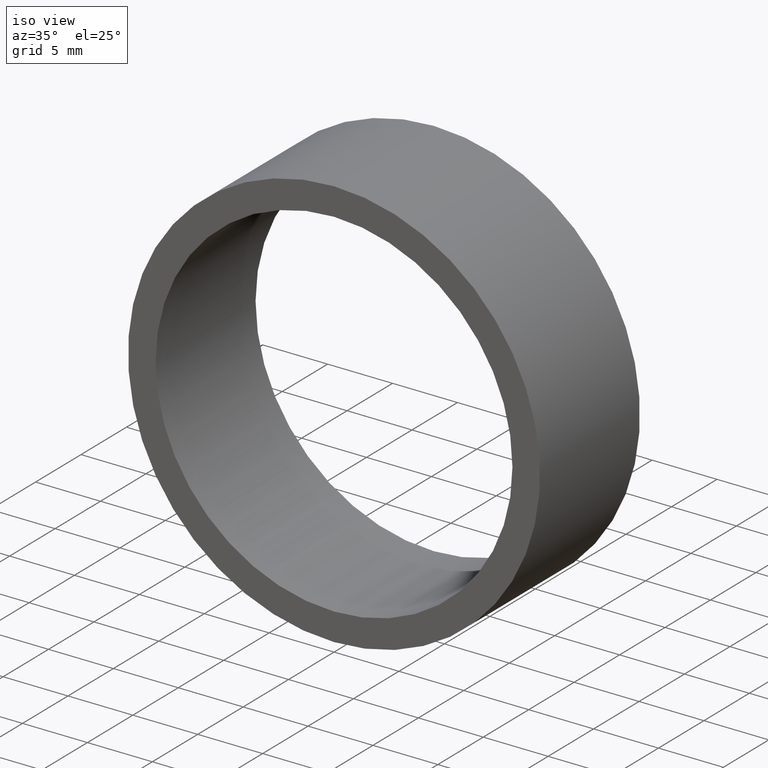
[diagram: clean part render]
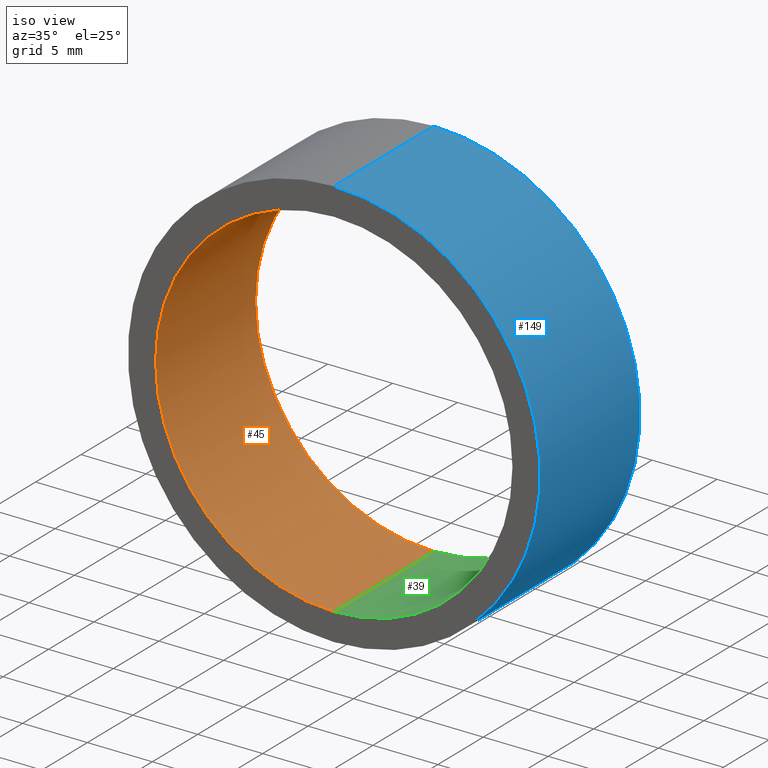
[diagram: same view with three faces highlighted in distinct colors, each labeled with its STEP entity id]
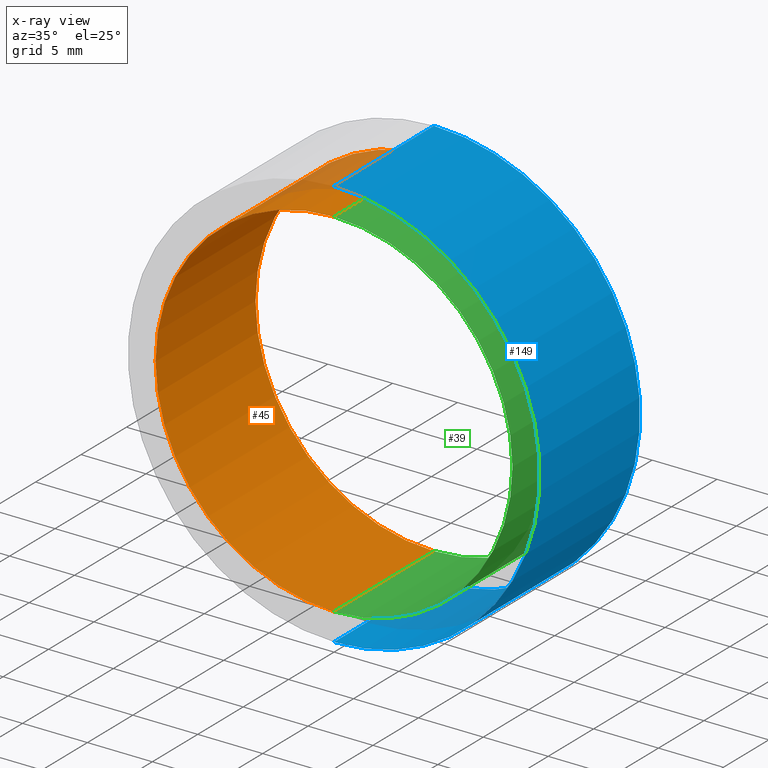
[diagram: x-ray of the same camera — body ghosted, the three highlighted faces saturated]
A machine part, iso view with three faces highlighted in distinct colors.
The next image is the same camera in x-ray (body ghosted, the three faces saturated) — at least one of them is partly hidden behind the body in this view.
Their STEP definitions:

[orange] entity #45 — the highlighted cylindrical surface (partial cylindrical patch) has radius 13.75 mm, axis along (-0, -1, -0).
#6 = AXIS2_PLACEMENT_3D ( 'NONE', #167, #24, #126 ) ;
#8 = CARTESIAN_POINT ( 'NONE',  ( 1.683889348827610700E-015, 0.0000000000000000000, 13.75000000000000000 ) ) ;
#9 = CARTESIAN_POINT ( 'NONE',  ( 0.0000000000000000000, 11.00000000000000000, -13.75000000000000000 ) ) ;
#13 = VERTEX_POINT ( 'NONE', #8 ) ;
#17 = CIRCLE ( 'NONE', #218, 13.75000000000000000 ) ;
#21 = VECTOR ( 'NONE', #230, 1000.000000000000000 ) ;
#23 = EDGE_CURVE ( 'NONE', #221, #13, #109, .T. ) ;
#24 = DIRECTION ( 'NONE',  ( -0.0000000000000000000, -1.000000000000000000, -0.0000000000000000000 ) ) ;
#27 = DIRECTION ( 'NONE',  ( 0.0000000000000000000, 1.000000000000000000, 0.0000000000000000000 ) ) ;
#28 = LINE ( 'NONE', #183, #21 ) ;
#30 = ORIENTED_EDGE ( 'NONE', *, *, #23, .T. ) ;
#34 = CARTESIAN_POINT ( 'NONE',  ( 1.683889348827610700E-015, 11.00000000000000000, 13.75000000000000000 ) ) ;
#36 = EDGE_CURVE ( 'NONE', #189, #221, #17, .T. ) ;
#45 = ADVANCED_FACE ( 'NONE', ( #77 ), #46, .F. ) ;
#46 = CYLINDRICAL_SURFACE ( 'NONE', #6, 13.75000000000000000 ) ;
#47 = EDGE_CURVE ( 'NONE', #189, #203, #28, .T. ) ;
#57 = DIRECTION ( 'NONE',  ( 0.0000000000000000000, 0.0000000000000000000, 1.000000000000000000 ) ) ;
#72 = ORIENTED_EDGE ( 'NONE', *, *, #36, .T. ) ;
#77 = FACE_OUTER_BOUND ( 'NONE', #161, .T. ) ;
#101 = EDGE_CURVE ( 'NONE', #203, #13, #169, .T. ) ;
#106 = VECTOR ( 'NONE', #179, 1000.000000000000000 ) ;
#109 = LINE ( 'NONE', #34, #106 ) ;
#126 = DIRECTION ( 'NONE',  ( 0.0000000000000000000, 0.0000000000000000000, -1.000000000000000000 ) ) ;
#141 = DIRECTION ( 'NONE',  ( 0.0000000000000000000, 1.000000000000000000, 0.0000000000000000000 ) ) ;
#142 = CARTESIAN_POINT ( 'NONE',  ( 1.683889348827610700E-015, 11.00000000000000000, 13.75000000000000000 ) ) ;
#161 = EDGE_LOOP ( 'NONE', ( #72, #30, #182, #244 ) ) ;
#167 = CARTESIAN_POINT ( 'NONE',  ( 0.0000000000000000000, 11.00000000000000000, 0.0000000000000000000 ) ) ;
#169 = CIRCLE ( 'NONE', #210, 13.75000000000000000 ) ;
#174 = CARTESIAN_POINT ( 'NONE',  ( 0.0000000000000000000, 0.0000000000000000000, 0.0000000000000000000 ) ) ;
#179 = DIRECTION ( 'NONE',  ( -0.0000000000000000000, -1.000000000000000000, -0.0000000000000000000 ) ) ;
#182 = ORIENTED_EDGE ( 'NONE', *, *, #101, .F. ) ;
#183 = CARTESIAN_POINT ( 'NONE',  ( 0.0000000000000000000, 11.00000000000000000, -13.75000000000000000 ) ) ;
#189 = VERTEX_POINT ( 'NONE', #9 ) ;
#203 = VERTEX_POINT ( 'NONE', #208 ) ;
#208 = CARTESIAN_POINT ( 'NONE',  ( 0.0000000000000000000, 0.0000000000000000000, -13.75000000000000000 ) ) ;
#210 = AXIS2_PLACEMENT_3D ( 'NONE', #174, #141, #57 ) ;
#218 = AXIS2_PLACEMENT_3D ( 'NONE', #219, #27, #227 ) ;
#219 = CARTESIAN_POINT ( 'NONE',  ( 0.0000000000000000000, 11.00000000000000000, 0.0000000000000000000 ) ) ;
#221 = VERTEX_POINT ( 'NONE', #142 ) ;
#227 = DIRECTION ( 'NONE',  ( 0.0000000000000000000, 0.0000000000000000000, 1.000000000000000000 ) ) ;
#230 = DIRECTION ( 'NONE',  ( -0.0000000000000000000, -1.000000000000000000, -0.0000000000000000000 ) ) ;
#244 = ORIENTED_EDGE ( 'NONE', *, *, #47, .F. ) ;

[blue] entity #149 — the highlighted cylindrical surface (partial cylindrical patch) has radius 15.875 mm, axis along (-0, -1, -0).
#1 = CARTESIAN_POINT ( 'NONE',  ( 1.944126793646423200E-015, 0.0000000000000000000, 15.87500000000000000 ) ) ;
#5 = VERTEX_POINT ( 'NONE', #11 ) ;
#11 = CARTESIAN_POINT ( 'NONE',  ( 0.0000000000000000000, 0.0000000000000000000, -15.87500000000000000 ) ) ;
#14 = LINE ( 'NONE', #232, #212 ) ;
#19 = DIRECTION ( 'NONE',  ( -0.0000000000000000000, -1.000000000000000000, -0.0000000000000000000 ) ) ;
#20 = CARTESIAN_POINT ( 'NONE',  ( 0.0000000000000000000, 11.00000000000000000, -15.87500000000000000 ) ) ;
#49 = DIRECTION ( 'NONE',  ( 0.0000000000000000000, 0.0000000000000000000, -1.000000000000000000 ) ) ;
#50 = VERTEX_POINT ( 'NONE', #20 ) ;
#64 = CIRCLE ( 'NONE', #207, 15.87500000000000000 ) ;
#69 = FACE_OUTER_BOUND ( 'NONE', #241, .T. ) ;
#74 = DIRECTION ( 'NONE',  ( 0.0000000000000000000, 0.0000000000000000000, 1.000000000000000000 ) ) ;
#78 = DIRECTION ( 'NONE',  ( -0.0000000000000000000, -1.000000000000000000, -0.0000000000000000000 ) ) ;
#84 = CARTESIAN_POINT ( 'NONE',  ( 1.944126793646423200E-015, 11.00000000000000000, 15.87500000000000000 ) ) ;
#108 = CARTESIAN_POINT ( 'NONE',  ( 0.0000000000000000000, 11.00000000000000000, 0.0000000000000000000 ) ) ;
#116 = ORIENTED_EDGE ( 'NONE', *, *, #242, .F. ) ;
#119 = DIRECTION ( 'NONE',  ( 0.0000000000000000000, 0.0000000000000000000, 1.000000000000000000 ) ) ;
#124 = CIRCLE ( 'NONE', #192, 15.87500000000000000 ) ;
#130 = EDGE_CURVE ( 'NONE', #50, #5, #14, .T. ) ;
#133 = VERTEX_POINT ( 'NONE', #140 ) ;
#139 = ORIENTED_EDGE ( 'NONE', *, *, #164, .T. ) ;
#140 = CARTESIAN_POINT ( 'NONE',  ( 1.944126793646423200E-015, 11.00000000000000000, 15.87500000000000000 ) ) ;
#143 = ORIENTED_EDGE ( 'NONE', *, *, #130, .F. ) ;
#145 = EDGE_CURVE ( 'NONE', #133, #186, #204, .T. ) ;
#146 = AXIS2_PLACEMENT_3D ( 'NONE', #165, #215, #49 ) ;
#149 = ADVANCED_FACE ( 'NONE', ( #69 ), #224, .T. ) ;
#164 = EDGE_CURVE ( 'NONE', #186, #5, #124, .T. ) ;
#165 = CARTESIAN_POINT ( 'NONE',  ( 0.0000000000000000000, 11.00000000000000000, 0.0000000000000000000 ) ) ;
#175 = DIRECTION ( 'NONE',  ( 0.0000000000000000000, 1.000000000000000000, 0.0000000000000000000 ) ) ;
#185 = CARTESIAN_POINT ( 'NONE',  ( 0.0000000000000000000, 0.0000000000000000000, 0.0000000000000000000 ) ) ;
#186 = VERTEX_POINT ( 'NONE', #1 ) ;
#192 = AXIS2_PLACEMENT_3D ( 'NONE', #185, #201, #74 ) ;
#201 = DIRECTION ( 'NONE',  ( 0.0000000000000000000, 1.000000000000000000, 0.0000000000000000000 ) ) ;
#204 = LINE ( 'NONE', #84, #217 ) ;
#206 = ORIENTED_EDGE ( 'NONE', *, *, #145, .T. ) ;
#207 = AXIS2_PLACEMENT_3D ( 'NONE', #108, #175, #119 ) ;
#212 = VECTOR ( 'NONE', #19, 1000.000000000000000 ) ;
#215 = DIRECTION ( 'NONE',  ( -0.0000000000000000000, -1.000000000000000000, -0.0000000000000000000 ) ) ;
#217 = VECTOR ( 'NONE', #78, 1000.000000000000000 ) ;
#224 = CYLINDRICAL_SURFACE ( 'NONE', #146, 15.87500000000000000 ) ;
#232 = CARTESIAN_POINT ( 'NONE',  ( 0.0000000000000000000, 11.00000000000000000, -15.87500000000000000 ) ) ;
#241 = EDGE_LOOP ( 'NONE', ( #116, #206, #139, #143 ) ) ;
#242 = EDGE_CURVE ( 'NONE', #133, #50, #64, .T. ) ;

[green] entity #39 — the highlighted cylindrical surface (partial cylindrical patch) has radius 13.75 mm, axis along (-0, -1, -0).
#3 = AXIS2_PLACEMENT_3D ( 'NONE', #68, #25, #188 ) ;
#8 = CARTESIAN_POINT ( 'NONE',  ( 1.683889348827610700E-015, 0.0000000000000000000, 13.75000000000000000 ) ) ;
#9 = CARTESIAN_POINT ( 'NONE',  ( 0.0000000000000000000, 11.00000000000000000, -13.75000000000000000 ) ) ;
#13 = VERTEX_POINT ( 'NONE', #8 ) ;
#21 = VECTOR ( 'NONE', #230, 1000.000000000000000 ) ;
#23 = EDGE_CURVE ( 'NONE', #221, #13, #109, .T. ) ;
#25 = DIRECTION ( 'NONE',  ( 0.0000000000000000000, 1.000000000000000000, 0.0000000000000000000 ) ) ;
#26 = CIRCLE ( 'NONE', #118, 13.75000000000000000 ) ;
#28 = LINE ( 'NONE', #183, #21 ) ;
#31 = AXIS2_PLACEMENT_3D ( 'NONE', #112, #243, #193 ) ;
#34 = CARTESIAN_POINT ( 'NONE',  ( 1.683889348827610700E-015, 11.00000000000000000, 13.75000000000000000 ) ) ;
#39 = ADVANCED_FACE ( 'NONE', ( #105 ), #151, .F. ) ;
#47 = EDGE_CURVE ( 'NONE', #189, #203, #28, .T. ) ;
#68 = CARTESIAN_POINT ( 'NONE',  ( 0.0000000000000000000, 0.0000000000000000000, 0.0000000000000000000 ) ) ;
#70 = EDGE_CURVE ( 'NONE', #221, #189, #26, .T. ) ;
#83 = ORIENTED_EDGE ( 'NONE', *, *, #70, .T. ) ;
#99 = DIRECTION ( 'NONE',  ( 0.0000000000000000000, 1.000000000000000000, 0.0000000000000000000 ) ) ;
#105 = FACE_OUTER_BOUND ( 'NONE', #205, .T. ) ;
#106 = VECTOR ( 'NONE', #179, 1000.000000000000000 ) ;
#109 = LINE ( 'NONE', #34, #106 ) ;
#112 = CARTESIAN_POINT ( 'NONE',  ( 0.0000000000000000000, 11.00000000000000000, 0.0000000000000000000 ) ) ;
#118 = AXIS2_PLACEMENT_3D ( 'NONE', #199, #99, #233 ) ;
#123 = ORIENTED_EDGE ( 'NONE', *, *, #47, .T. ) ;
#142 = CARTESIAN_POINT ( 'NONE',  ( 1.683889348827610700E-015, 11.00000000000000000, 13.75000000000000000 ) ) ;
#151 = CYLINDRICAL_SURFACE ( 'NONE', #31, 13.75000000000000000 ) ;
#170 = EDGE_CURVE ( 'NONE', #13, #203, #181, .T. ) ;
#179 = DIRECTION ( 'NONE',  ( -0.0000000000000000000, -1.000000000000000000, -0.0000000000000000000 ) ) ;
#181 = CIRCLE ( 'NONE', #3, 13.75000000000000000 ) ;
#183 = CARTESIAN_POINT ( 'NONE',  ( 0.0000000000000000000, 11.00000000000000000, -13.75000000000000000 ) ) ;
#188 = DIRECTION ( 'NONE',  ( 0.0000000000000000000, 0.0000000000000000000, 1.000000000000000000 ) ) ;
#189 = VERTEX_POINT ( 'NONE', #9 ) ;
#193 = DIRECTION ( 'NONE',  ( 0.0000000000000000000, 0.0000000000000000000, -1.000000000000000000 ) ) ;
#199 = CARTESIAN_POINT ( 'NONE',  ( 0.0000000000000000000, 11.00000000000000000, 0.0000000000000000000 ) ) ;
#200 = ORIENTED_EDGE ( 'NONE', *, *, #170, .F. ) ;
#203 = VERTEX_POINT ( 'NONE', #208 ) ;
#205 = EDGE_LOOP ( 'NONE', ( #211, #83, #123, #200 ) ) ;
#208 = CARTESIAN_POINT ( 'NONE',  ( 0.0000000000000000000, 0.0000000000000000000, -13.75000000000000000 ) ) ;
#211 = ORIENTED_EDGE ( 'NONE', *, *, #23, .F. ) ;
#221 = VERTEX_POINT ( 'NONE', #142 ) ;
#230 = DIRECTION ( 'NONE',  ( -0.0000000000000000000, -1.000000000000000000, -0.0000000000000000000 ) ) ;
#233 = DIRECTION ( 'NONE',  ( 0.0000000000000000000, 0.0000000000000000000, 1.000000000000000000 ) ) ;
#243 = DIRECTION ( 'NONE',  ( -0.0000000000000000000, -1.000000000000000000, -0.0000000000000000000 ) ) ;